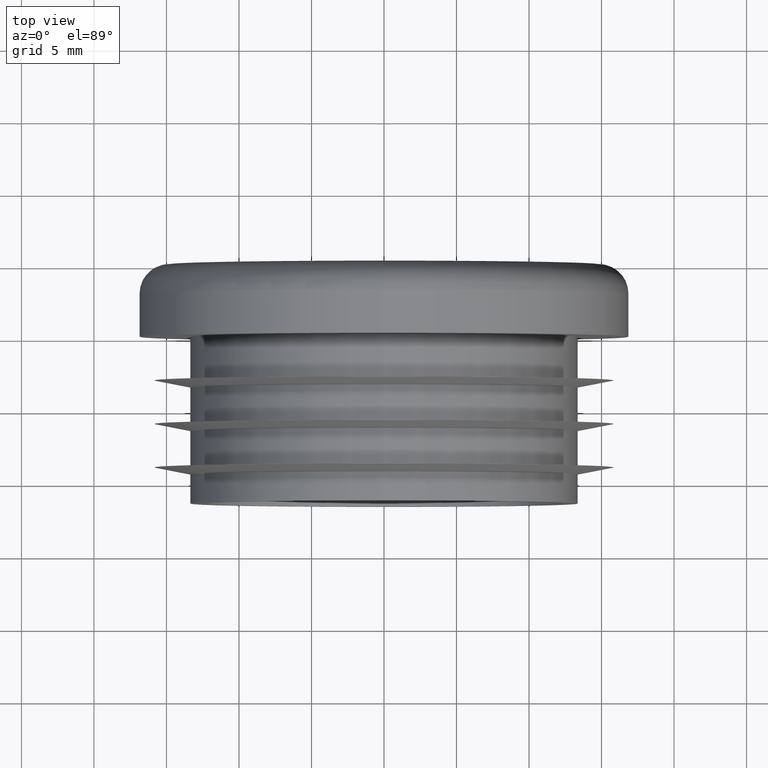
[diagram: clean part render]
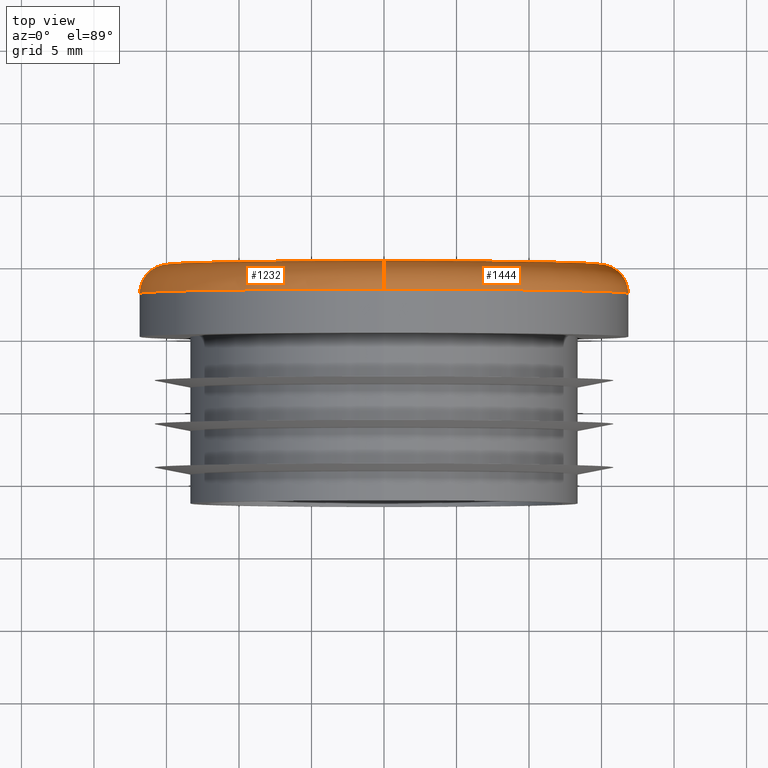
[diagram: same view with one multi-face feature highlighted, each face labeled with its STEP entity id]
A machine part, top view. The highlighted faces form ONE feature: a constant-radius fillet chain: 2 tangent blend faces with common blend radius 2 mm. The faces share edges in the B-rep.
Their STEP definitions:
[1] entity #1232 (Torus):
#430 = EDGE_LOOP ( 'NONE', ( #1182, #4261, #3789, #8841 ) ) ;
#478 = TOROIDAL_SURFACE ( 'NONE', #8409, 14.85000000000000000, 2.000000000000000000 ) ;
#498 = VERTEX_POINT ( 'NONE', #3982 ) ;
#607 = EDGE_CURVE ( 'NONE', #7852, #498, #1626, .T. ) ;
#613 = DIRECTION ( 'NONE',  ( 0.0000000000000000000, 0.0000000000000000000, 1.000000000000000000 ) ) ;
#988 = VERTEX_POINT ( 'NONE', #1777 ) ;
#1182 = ORIENTED_EDGE ( 'NONE', *, *, #607, .F. ) ;
#1232 = ADVANCED_FACE ( 'NONE', ( #6289 ), #478, .T. ) ;
#1497 = CARTESIAN_POINT ( 'NONE',  ( 0.0000000000000000000, 3.000000000000000000, 14.85000000000000000 ) ) ;
#1626 = CIRCLE ( 'NONE', #8476, 2.000000000000000000 ) ;
#1777 = CARTESIAN_POINT ( 'NONE',  ( 2.063529856563290200E-015, 3.000000000000000000, 16.85000000000000100 ) ) ;
#1867 = VERTEX_POINT ( 'NONE', #4106 ) ;
#2235 = DIRECTION ( 'NONE',  ( 0.0000000000000000000, 0.0000000000000000000, 1.000000000000000000 ) ) ;
#2503 = DIRECTION ( 'NONE',  ( 0.0000000000000000000, 1.000000000000000000, 0.0000000000000000000 ) ) ;
#3115 = DIRECTION ( 'NONE',  ( 1.224646799147352500E-016, 0.0000000000000000000, -1.000000000000000000 ) ) ;
#3127 = DIRECTION ( 'NONE',  ( 1.000000000000000000, -0.0000000000000000000, 1.224646799147353200E-016 ) ) ;
#3140 = CARTESIAN_POINT ( 'NONE',  ( 1.818600496733819600E-015, 3.000000000000000000, -14.85000000000000000 ) ) ;
#3342 = AXIS2_PLACEMENT_3D ( 'NONE', #9004, #5039, #613 ) ;
#3661 = CIRCLE ( 'NONE', #6749, 14.85000000000000000 ) ;
#3758 = AXIS2_PLACEMENT_3D ( 'NONE', #1497, #6534, #2235 ) ;
#3789 = ORIENTED_EDGE ( 'NONE', *, *, #8649, .T. ) ;
#3861 = EDGE_CURVE ( 'NONE', #498, #1867, #3661, .T. ) ;
#3872 = CARTESIAN_POINT ( 'NONE',  ( 0.0000000000000000000, 3.000000000000000000, -16.85000000000000100 ) ) ;
#3982 = CARTESIAN_POINT ( 'NONE',  ( 1.941065176648555100E-015, 5.000000000000000000, -14.85000000000000000 ) ) ;
#4106 = CARTESIAN_POINT ( 'NONE',  ( 0.0000000000000000000, 5.000000000000000000, 14.85000000000000000 ) ) ;
#4261 = ORIENTED_EDGE ( 'NONE', *, *, #6514, .F. ) ;
#4336 = CIRCLE ( 'NONE', #3758, 2.000000000000000000 ) ;
#4926 = CIRCLE ( 'NONE', #3342, 16.85000000000000100 ) ;
#5039 = DIRECTION ( 'NONE',  ( -0.0000000000000000000, -1.000000000000000000, -0.0000000000000000000 ) ) ;
#5837 = DIRECTION ( 'NONE',  ( 0.0000000000000000000, 0.0000000000000000000, 1.000000000000000000 ) ) ;
#6289 = FACE_OUTER_BOUND ( 'NONE', #430, .T. ) ;
#6514 = EDGE_CURVE ( 'NONE', #988, #7852, #4926, .T. ) ;
#6534 = DIRECTION ( 'NONE',  ( -1.000000000000000000, 0.0000000000000000000, 0.0000000000000000000 ) ) ;
#6736 = CARTESIAN_POINT ( 'NONE',  ( 0.0000000000000000000, 3.000000000000000000, 0.0000000000000000000 ) ) ;
#6749 = AXIS2_PLACEMENT_3D ( 'NONE', #6785, #2503, #7440 ) ;
#6785 = CARTESIAN_POINT ( 'NONE',  ( 0.0000000000000000000, 5.000000000000000000, 0.0000000000000000000 ) ) ;
#6858 = DIRECTION ( 'NONE',  ( 0.0000000000000000000, 1.000000000000000000, 0.0000000000000000000 ) ) ;
#7440 = DIRECTION ( 'NONE',  ( 0.0000000000000000000, 0.0000000000000000000, 1.000000000000000000 ) ) ;
#7852 = VERTEX_POINT ( 'NONE', #3872 ) ;
#8409 = AXIS2_PLACEMENT_3D ( 'NONE', #6736, #6858, #5837 ) ;
#8476 = AXIS2_PLACEMENT_3D ( 'NONE', #3140, #3127, #3115 ) ;
#8649 = EDGE_CURVE ( 'NONE', #988, #1867, #4336, .T. ) ;
#8841 = ORIENTED_EDGE ( 'NONE', *, *, #3861, .F. ) ;
#9004 = CARTESIAN_POINT ( 'NONE',  ( 0.0000000000000000000, 3.000000000000000000, 0.0000000000000000000 ) ) ;
[2] entity #1444 (Torus):
#498 = VERTEX_POINT ( 'NONE', #3982 ) ;
#607 = EDGE_CURVE ( 'NONE', #7852, #498, #1626, .T. ) ;
#977 = DIRECTION ( 'NONE',  ( -0.0000000000000000000, -1.000000000000000000, -0.0000000000000000000 ) ) ;
#988 = VERTEX_POINT ( 'NONE', #1777 ) ;
#1444 = ADVANCED_FACE ( 'NONE', ( #1525 ), #6811, .T. ) ;
#1497 = CARTESIAN_POINT ( 'NONE',  ( 0.0000000000000000000, 3.000000000000000000, 14.85000000000000000 ) ) ;
#1525 = FACE_OUTER_BOUND ( 'NONE', #7538, .T. ) ;
#1537 = CARTESIAN_POINT ( 'NONE',  ( 0.0000000000000000000, 5.000000000000000000, 0.0000000000000000000 ) ) ;
#1626 = CIRCLE ( 'NONE', #8476, 2.000000000000000000 ) ;
#1777 = CARTESIAN_POINT ( 'NONE',  ( 2.063529856563290200E-015, 3.000000000000000000, 16.85000000000000100 ) ) ;
#1867 = VERTEX_POINT ( 'NONE', #4106 ) ;
#2235 = DIRECTION ( 'NONE',  ( 0.0000000000000000000, 0.0000000000000000000, 1.000000000000000000 ) ) ;
#2281 = DIRECTION ( 'NONE',  ( 0.0000000000000000000, 0.0000000000000000000, 1.000000000000000000 ) ) ;
#2406 = ORIENTED_EDGE ( 'NONE', *, *, #7948, .F. ) ;
#3034 = AXIS2_PLACEMENT_3D ( 'NONE', #1537, #6579, #2281 ) ;
#3115 = DIRECTION ( 'NONE',  ( 1.224646799147352500E-016, 0.0000000000000000000, -1.000000000000000000 ) ) ;
#3127 = DIRECTION ( 'NONE',  ( 1.000000000000000000, -0.0000000000000000000, 1.224646799147353200E-016 ) ) ;
#3140 = CARTESIAN_POINT ( 'NONE',  ( 1.818600496733819600E-015, 3.000000000000000000, -14.85000000000000000 ) ) ;
#3322 = CIRCLE ( 'NONE', #3034, 14.85000000000000000 ) ;
#3758 = AXIS2_PLACEMENT_3D ( 'NONE', #1497, #6534, #2235 ) ;
#3872 = CARTESIAN_POINT ( 'NONE',  ( 0.0000000000000000000, 3.000000000000000000, -16.85000000000000100 ) ) ;
#3903 = CIRCLE ( 'NONE', #5106, 16.85000000000000100 ) ;
#3982 = CARTESIAN_POINT ( 'NONE',  ( 1.941065176648555100E-015, 5.000000000000000000, -14.85000000000000000 ) ) ;
#4106 = CARTESIAN_POINT ( 'NONE',  ( 0.0000000000000000000, 5.000000000000000000, 14.85000000000000000 ) ) ;
#4336 = CIRCLE ( 'NONE', #3758, 2.000000000000000000 ) ;
#4660 = AXIS2_PLACEMENT_3D ( 'NONE', #7656, #7642, #7579 ) ;
#5106 = AXIS2_PLACEMENT_3D ( 'NONE', #5410, #977, #6093 ) ;
#5410 = CARTESIAN_POINT ( 'NONE',  ( 0.0000000000000000000, 3.000000000000000000, 0.0000000000000000000 ) ) ;
#5926 = ORIENTED_EDGE ( 'NONE', *, *, #607, .T. ) ;
#6093 = DIRECTION ( 'NONE',  ( 0.0000000000000000000, 0.0000000000000000000, 1.000000000000000000 ) ) ;
#6178 = EDGE_CURVE ( 'NONE', #1867, #498, #3322, .T. ) ;
#6445 = ORIENTED_EDGE ( 'NONE', *, *, #8649, .F. ) ;
#6534 = DIRECTION ( 'NONE',  ( -1.000000000000000000, 0.0000000000000000000, 0.0000000000000000000 ) ) ;
#6579 = DIRECTION ( 'NONE',  ( 0.0000000000000000000, 1.000000000000000000, 0.0000000000000000000 ) ) ;
#6811 = TOROIDAL_SURFACE ( 'NONE', #4660, 14.85000000000000000, 2.000000000000000000 ) ;
#7538 = EDGE_LOOP ( 'NONE', ( #2406, #5926, #8883, #6445 ) ) ;
#7579 = DIRECTION ( 'NONE',  ( 0.0000000000000000000, 0.0000000000000000000, 1.000000000000000000 ) ) ;
#7642 = DIRECTION ( 'NONE',  ( 0.0000000000000000000, 1.000000000000000000, 0.0000000000000000000 ) ) ;
#7656 = CARTESIAN_POINT ( 'NONE',  ( 0.0000000000000000000, 3.000000000000000000, 0.0000000000000000000 ) ) ;
#7852 = VERTEX_POINT ( 'NONE', #3872 ) ;
#7948 = EDGE_CURVE ( 'NONE', #7852, #988, #3903, .T. ) ;
#8476 = AXIS2_PLACEMENT_3D ( 'NONE', #3140, #3127, #3115 ) ;
#8649 = EDGE_CURVE ( 'NONE', #988, #1867, #4336, .T. ) ;
#8883 = ORIENTED_EDGE ( 'NONE', *, *, #6178, .F. ) ;